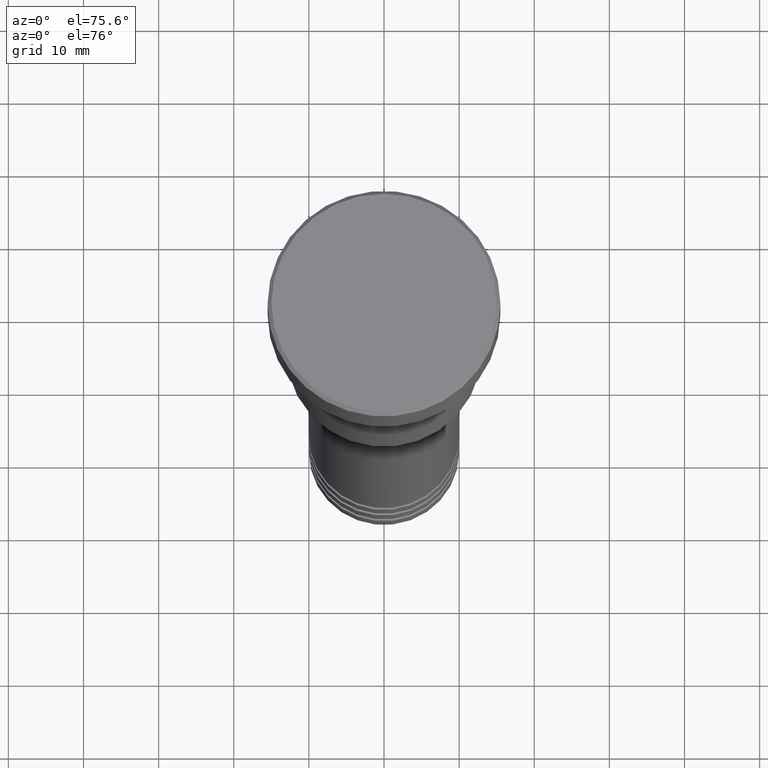
[diagram: clean part render]
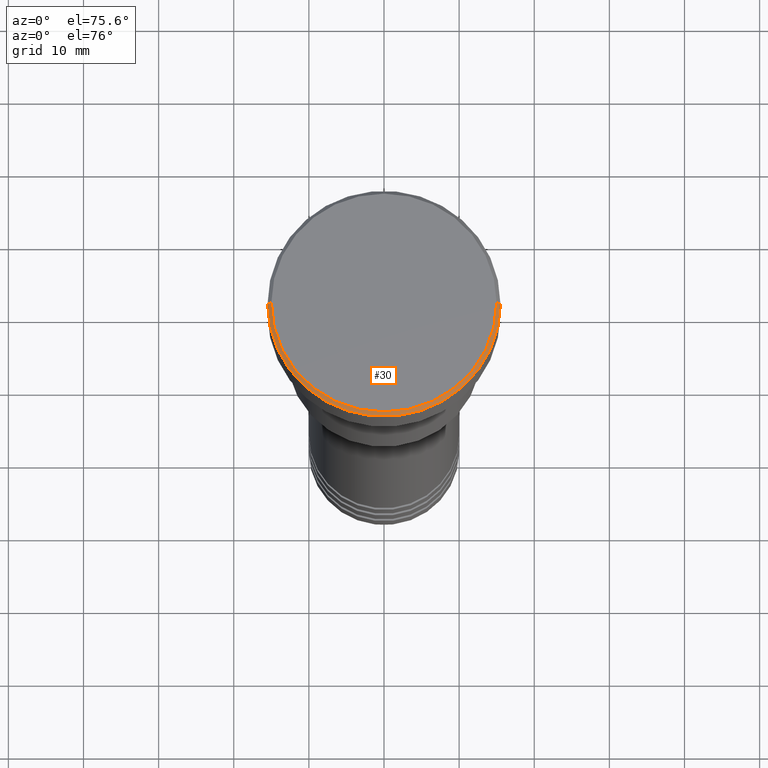
[diagram: same view with one face highlighted and labeled with its STEP entity id]
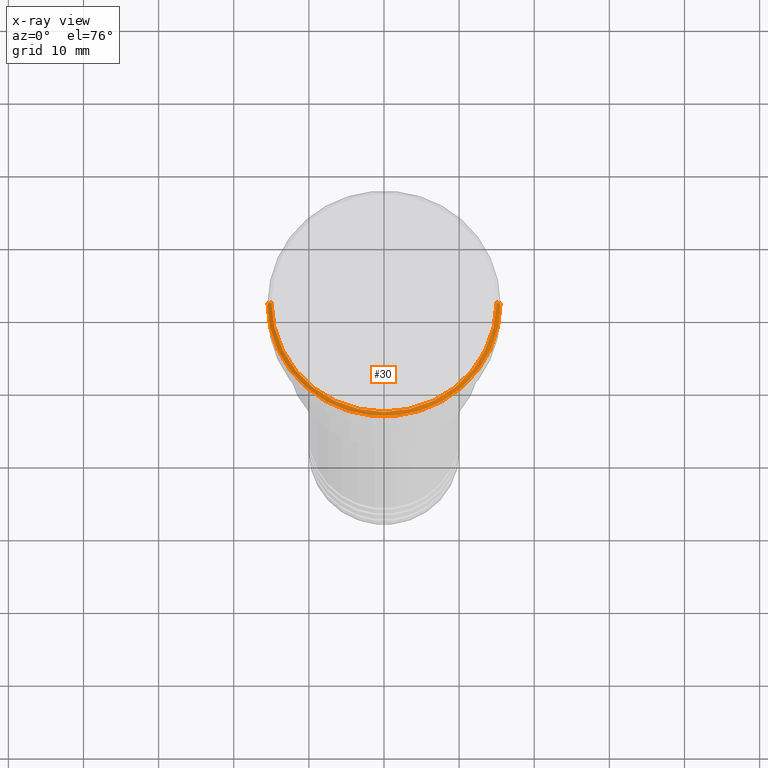
[diagram: x-ray of the same camera — body ghosted, the highlighted face saturated]
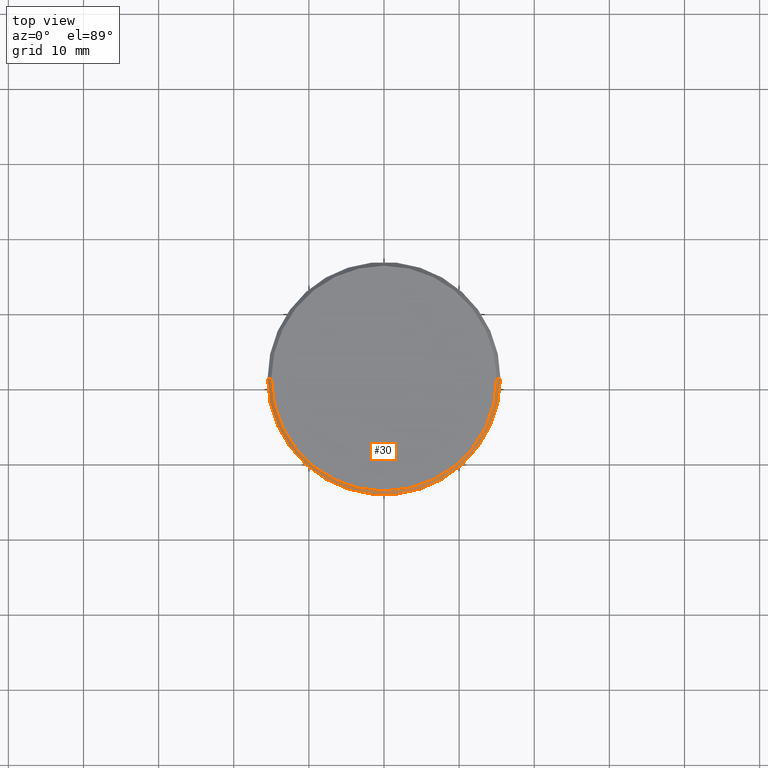
[diagram: same view with one face highlighted and labeled with its STEP entity id]
A machine part, auxiliary view. The second image highlights one B-rep face of the part: STEP entity #30.
The next image is the same camera in x-ray: the body ghosted, the highlighted face saturated — about 0% of this face is hidden behind the body in this view.
A second angle (top view) of the same face is appended — the face is thin or edge-on in the first view.
In plain terms, the highlighted conical surface has half-angle 45 deg.
Its self-contained STEP definition (entity closure, byte-faithful):
#7 = FACE_OUTER_BOUND ( 'NONE', #148, .T. ) ;
#30 = ADVANCED_FACE ( 'NONE', ( #7 ), #356, .T. ) ;
#42 = AXIS2_PLACEMENT_3D ( 'NONE', #956, #428, #154 ) ;
#148 = EDGE_LOOP ( 'NONE', ( #500, #816, #1139, #729 ) ) ;
#154 = DIRECTION ( 'NONE',  ( 1.000000000000000000, 0.000000000000000000, 0.000000000000000000 ) ) ;
#306 = CIRCLE ( 'NONE', #633, 15.00000000000000000 ) ;
#349 = DIRECTION ( 'NONE',  ( -1.000000000000000000, 0.000000000000000000, 0.000000000000000000 ) ) ;
#356 = CONICAL_SURFACE ( 'NONE', #962, 15.00000000000000000, 0.7853981633974500554 ) ;
#360 = VECTOR ( 'NONE', #769, 1000.000000000000000 ) ;
#402 = VERTEX_POINT ( 'NONE', #1157 ) ;
#406 = EDGE_CURVE ( 'NONE', #501, #515, #306, .T. ) ;
#428 = DIRECTION ( 'NONE',  ( 0.000000000000000000, 0.000000000000000000, -1.000000000000000000 ) ) ;
#463 = CARTESIAN_POINT ( 'NONE',  ( -15.00000000000000000, 0.000000000000000000, 0.000000000000000000 ) ) ;
#495 = CARTESIAN_POINT ( 'NONE',  ( 15.00000000000000000, 1.867586368699713376E-15, 0.000000000000000000 ) ) ;
#500 = ORIENTED_EDGE ( 'NONE', *, *, #1142, .F. ) ;
#501 = VERTEX_POINT ( 'NONE', #463 ) ;
#515 = VERTEX_POINT ( 'NONE', #495 ) ;
#586 = EDGE_CURVE ( 'NONE', #501, #402, #677, .T. ) ;
#593 = EDGE_CURVE ( 'NONE', #831, #402, #1145, .T. ) ;
#633 = AXIS2_PLACEMENT_3D ( 'NONE', #709, #695, #895 ) ;
#677 = LINE ( 'NONE', #879, #360 ) ;
#695 = DIRECTION ( 'NONE',  ( -0.000000000000000000, -0.000000000000000000, 1.000000000000000000 ) ) ;
#709 = CARTESIAN_POINT ( 'NONE',  ( 0.000000000000000000, 0.000000000000000000, 0.000000000000000000 ) ) ;
#729 = ORIENTED_EDGE ( 'NONE', *, *, #593, .F. ) ;
#769 = DIRECTION ( 'NONE',  ( -0.7071067811865487940, 0.000000000000000000, -0.7071067811865463515 ) ) ;
#781 = LINE ( 'NONE', #987, #865 ) ;
#788 = DIRECTION ( 'NONE',  ( 0.7071067811865487940, 8.659560562354950115E-17, -0.7071067811865463515 ) ) ;
#816 = ORIENTED_EDGE ( 'NONE', *, *, #406, .F. ) ;
#831 = VERTEX_POINT ( 'NONE', #1067 ) ;
#865 = VECTOR ( 'NONE', #788, 1000.000000000000000 ) ;
#879 = CARTESIAN_POINT ( 'NONE',  ( -15.00000000000000000, 0.000000000000000000, 0.000000000000000000 ) ) ;
#895 = DIRECTION ( 'NONE',  ( 1.000000000000000000, 0.000000000000000000, 0.000000000000000000 ) ) ;
#956 = CARTESIAN_POINT ( 'NONE',  ( 0.000000000000000000, 0.000000000000000000, -0.4999999999999987232 ) ) ;
#962 = AXIS2_PLACEMENT_3D ( 'NONE', #1097, #1174, #349 ) ;
#987 = CARTESIAN_POINT ( 'NONE',  ( 15.00000000000000000, 1.836970198721029589E-15, 0.000000000000000000 ) ) ;
#1067 = CARTESIAN_POINT ( 'NONE',  ( 15.50000000000000000, 0.000000000000000000, -0.4999999999999987232 ) ) ;
#1097 = CARTESIAN_POINT ( 'NONE',  ( 0.000000000000000000, 0.000000000000000000, 0.000000000000000000 ) ) ;
#1139 = ORIENTED_EDGE ( 'NONE', *, *, #586, .T. ) ;
#1142 = EDGE_CURVE ( 'NONE', #515, #831, #781, .T. ) ;
#1145 = CIRCLE ( 'NONE', #42, 15.50000000000000000 ) ;
#1157 = CARTESIAN_POINT ( 'NONE',  ( -15.50000000000000000, 1.898202538678397557E-15, -0.4999999999999987232 ) ) ;
#1174 = DIRECTION ( 'NONE',  ( 0.000000000000000000, 0.000000000000000000, -1.000000000000000000 ) ) ;